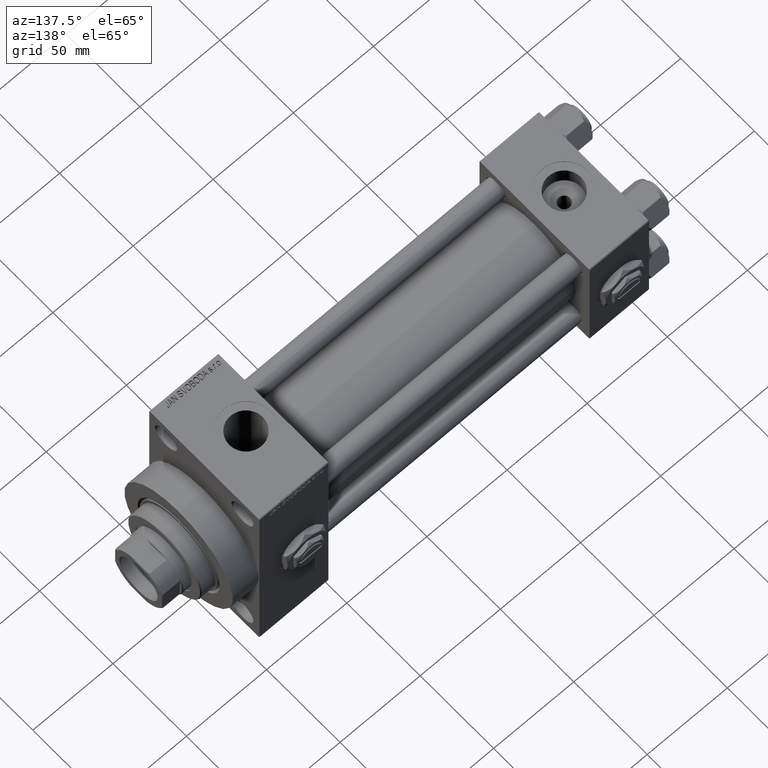
[diagram: clean part render]
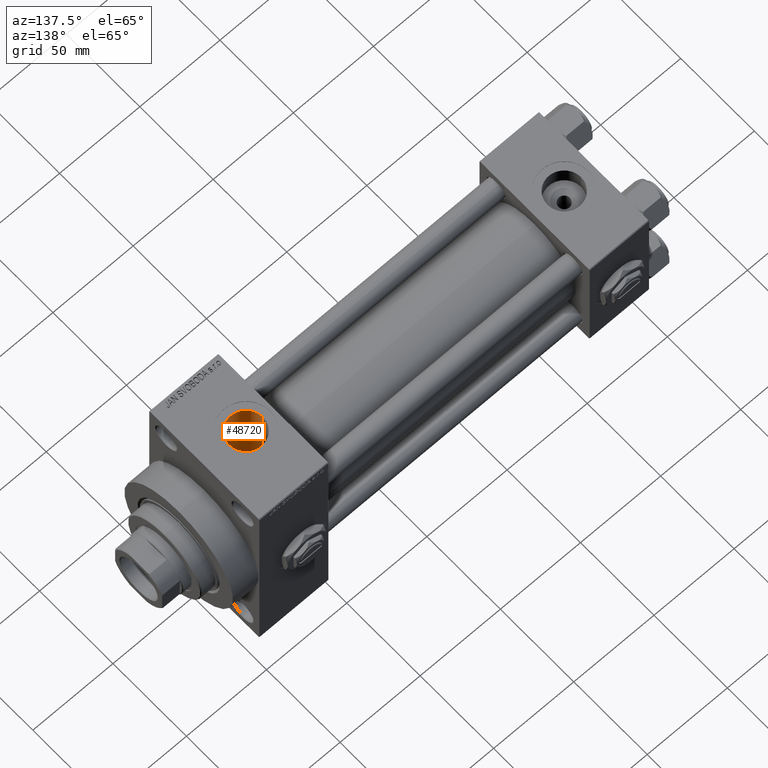
[diagram: same view with one face highlighted and labeled with its STEP entity id]
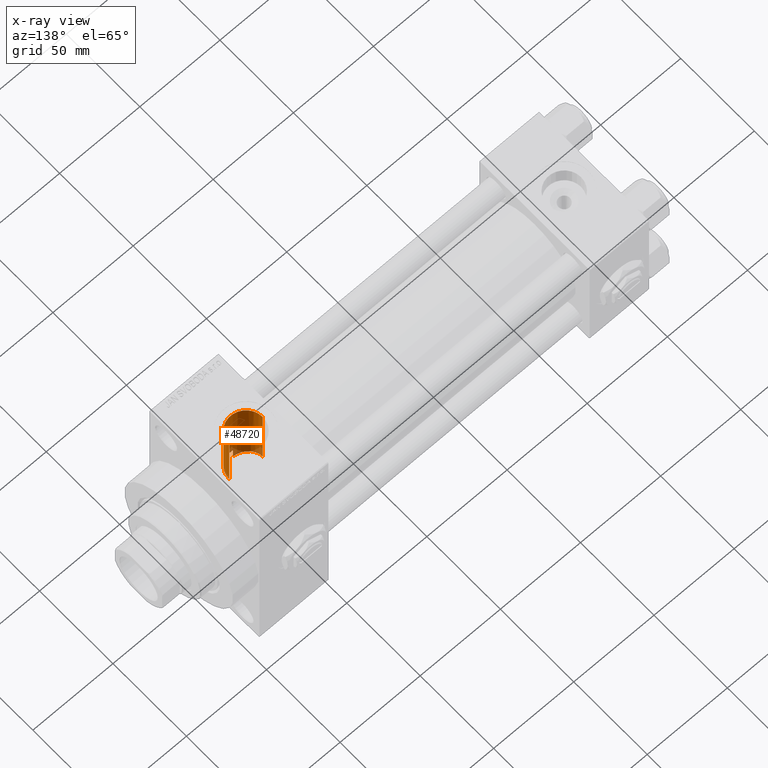
[diagram: x-ray of the same camera — body ghosted, the highlighted face saturated]
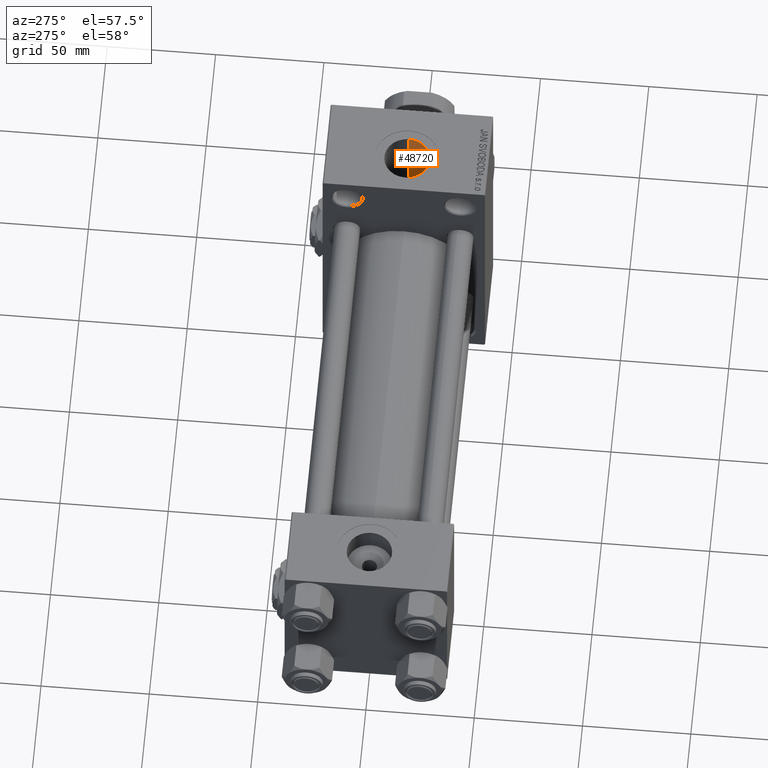
[diagram: same view with one face highlighted and labeled with its STEP entity id]
A machine part, auxiliary view. The second image highlights one B-rep face of the part: STEP entity #48720.
The next image is the same camera in x-ray: the body ghosted, the highlighted face saturated — about 7% of this face is hidden behind the body in this view.
A second angle (auxiliary view) of the same face is appended — the face is thin or edge-on in the first view.
In plain terms, the highlighted cylindrical surface (edge-blend (fillet) strip) has radius 10.48 mm, axis along (0, 0, -1).
Its self-contained STEP definition (entity closure, byte-faithful):
#541 = ORIENTED_EDGE ( 'NONE', *, *, #7051, .F. ) ;
#725 = CARTESIAN_POINT ( 'NONE',  ( 227.4800000000000182, -1.055894908382857656E-14, 86.79999999999995453 ) ) ;
#830 = ORIENTED_EDGE ( 'NONE', *, *, #5356, .F. ) ;
#861 = CARTESIAN_POINT ( 'NONE',  ( 227.4800000000000182, -1.055894908382857656E-14, 63.79999999999996874 ) ) ;
#2280 = ORIENTED_EDGE ( 'NONE', *, *, #5702, .T. ) ;
#3312 = CARTESIAN_POINT ( 'NONE',  ( 226.8335546017134732, -3.642695553053292290, 26.25084325021122567 ) ) ;
#3539 = CARTESIAN_POINT ( 'NONE',  ( 227.4800000000001887, 1.369086091260426415E-14, 26.50000000000006750 ) ) ;
#4025 = CARTESIAN_POINT ( 'NONE',  ( 222.8022832347253654, -8.734885810677008422, 25.02004257437573997 ) ) ;
#5356 = EDGE_CURVE ( 'NONE', #34094, #29550, #36591, .T. ) ;
#5702 = EDGE_CURVE ( 'NONE', #36464, #39620, #40603, .T. ) ;
#5962 = LINE ( 'NONE', #21260, #10732 ) ;
#5991 = CARTESIAN_POINT ( 'NONE',  ( 208.2177924678372847, -5.727359184013972815, 19.68566307691175155 ) ) ;
#7051 = EDGE_CURVE ( 'NONE', #29550, #44443, #7321, .T. ) ;
#7117 = DIRECTION ( 'NONE',  ( 1.000000000000000000, 0.000000000000000000, 0.000000000000000000 ) ) ;
#7321 = LINE ( 'NONE', #21210, #34248 ) ;
#8138 = DIRECTION ( 'NONE',  ( -1.000000000000000000, 0.000000000000000000, 0.000000000000000000 ) ) ;
#10732 = VECTOR ( 'NONE', #25256, 1000.000000000000000 ) ;
#10740 = CARTESIAN_POINT ( 'NONE',  ( 206.7557754428708847, -2.233872855162164495, 20.38041083426450939 ) ) ;
#11307 = CARTESIAN_POINT ( 'NONE',  ( 226.2276638786152034, -4.981583166679976138, 26.02957788900645397 ) ) ;
#11788 = CARTESIAN_POINT ( 'NONE',  ( 221.8603660912150417, -9.291949300782555099, 24.81826977973610937 ) ) ;
#11899 = DIRECTION ( 'NONE',  ( 0.000000000000000000, 0.000000000000000000, -1.000000000000000000 ) ) ;
#12736 = VECTOR ( 'NONE', #27536, 1000.000000000000000 ) ;
#14267 = CARTESIAN_POINT ( 'NONE',  ( 208.7690786171585557, -6.494668957650275409, 19.44580269579670784 ) ) ;
#14518 = CARTESIAN_POINT ( 'NONE',  ( 210.0381797508610759, -7.858608369745931022, 18.93862270061622510 ) ) ;
#15564 = CARTESIAN_POINT ( 'NONE',  ( 225.6508763872861323, -5.926808359427520934, 25.83050513016099714 ) ) ;
#17270 = CARTESIAN_POINT ( 'NONE',  ( 212.6712488263176226, -9.549519568135618641, 18.14045042009997033 ) ) ;
#17531 = CARTESIAN_POINT ( 'NONE',  ( 207.0054261414356631, -3.168907222089405895, 20.25599475177158482 ) ) ;
#18278 = CARTESIAN_POINT ( 'NONE',  ( 214.4743138489851901, -10.19113621709991513, 17.78872259750078300 ) ) ;
#18596 = CARTESIAN_POINT ( 'NONE',  ( 225.8553297434206684, -5.616857363200520759, 25.89992295911059017 ) ) ;
#18835 = CARTESIAN_POINT ( 'NONE',  ( 219.4459359432479459, -10.21777125531390240, 24.45211332338677934 ) ) ;
#18980 = AXIS2_PLACEMENT_3D ( 'NONE', #40969, #40712, #7117 ) ;
#19569 = B_SPLINE_CURVE_WITH_KNOTS ( 'NONE', 3,
 ( #44090, #33048, #18278, #33553, #25044, #17270, #44335, #40823, #48859, #14518, #33297, #29792, #14267, #29546, #5991, #45088, #21286, #36571, #17531, #29044, #10740, #26032, #41316, #32802 ),
 .UNSPECIFIED., .F., .F.,
 ( 4, 2, 2, 2, 2, 2, 2, 2, 2, 2, 2, 4 ),
 ( 0.01794441051450875596, 0.01987210289621882398, 0.02083594908707385798, 0.02179979527792889546, 0.02372748765963889062, 0.02565518004134888924, 0.02661902623220386427, 0.02758287242305883583, 0.02951056480476877547, 0.03047441099562375050, 0.03143825718647871859, 0.03336594956818868252 ),
 .UNSPECIFIED. ) ;
#20452 = EDGE_CURVE ( 'NONE', #21012, #44443, #19569, .T. ) ;
#21012 = VERTEX_POINT ( 'NONE', #30643 ) ;
#21195 = CARTESIAN_POINT ( 'NONE',  ( 206.5200000000000387, 2.510525899703770247E-15, 20.50000000000000000 ) ) ;
#21210 = CARTESIAN_POINT ( 'NONE',  ( 206.5200000000000387, -1.184237892933500047E-14, 86.79999999999995453 ) ) ;
#21260 = CARTESIAN_POINT ( 'NONE',  ( 215.7400000000000091, -10.40398000767013720, 86.79999999999995453 ) ) ;
#21286 = CARTESIAN_POINT ( 'NONE',  ( 207.4472730664948017, -4.356133276745589811, 20.04082582304832627 ) ) ;
#22067 = AXIS2_PLACEMENT_3D ( 'NONE', #47375, #11899, #8138 ) ;
#22361 = CARTESIAN_POINT ( 'NONE',  ( 218.7216423275559691, -10.36418010715237159, 24.38933169417625280 ) ) ;
#22834 = CARTESIAN_POINT ( 'NONE',  ( 227.4011065554137474, -1.483758503940589613, 26.46850309434598003 ) ) ;
#23080 = CARTESIAN_POINT ( 'NONE',  ( 220.8600678267364117, -9.750145953289937495, 24.64162310621549068 ) ) ;
#23323 = CARTESIAN_POINT ( 'NONE',  ( 220.5115735695664796, -9.881194972351272199, 24.58915736193083390 ) ) ;
#23531 = LINE ( 'NONE', #725, #12736 ) ;
#25044 = CARTESIAN_POINT ( 'NONE',  ( 213.2578787675115564, -9.794280953047078242, 18.00947878310445915 ) ) ;
#25256 = DIRECTION ( 'NONE',  ( -0.000000000000000000, -0.000000000000000000, 1.000000000000000000 ) ) ;
#26032 = CARTESIAN_POINT ( 'NONE',  ( 206.5788755912575994, -1.283068547344818677, 20.46971103676261450 ) ) ;
#26589 = CARTESIAN_POINT ( 'NONE',  ( 224.5076201536012093, -7.348534936426559305, 25.46581292754184034 ) ) ;
#26953 = EDGE_CURVE ( 'NONE', #34094, #36464, #23531, .T. ) ;
#27070 = CARTESIAN_POINT ( 'NONE',  ( 227.1654842721633827, -2.575241489874377621, 26.37710048711163324 ) ) ;
#27536 = DIRECTION ( 'NONE',  ( 0.000000000000000000, 0.000000000000000000, -1.000000000000000000 ) ) ;
#28964 = ORIENTED_EDGE ( 'NONE', *, *, #26953, .T. ) ;
#29044 = CARTESIAN_POINT ( 'NONE',  ( 206.8301889492347527, -2.551161066698723889, 20.34303009823682018 ) ) ;
#29546 = CARTESIAN_POINT ( 'NONE',  ( 208.3953798552083754, -5.990768218169443493, 19.60690346560341624 ) ) ;
#29550 = VERTEX_POINT ( 'NONE', #44477 ) ;
#29792 = CARTESIAN_POINT ( 'NONE',  ( 208.9658951235677478, -6.736478654131065724, 19.36312927646823923 ) ) ;
#30122 = CARTESIAN_POINT ( 'NONE',  ( 227.4800000000001887, 1.369086091260426415E-14, 26.50000000000006750 ) ) ;
#30352 = CARTESIAN_POINT ( 'NONE',  ( 227.4800000000000182, -0.7466733969459942166, 26.50000000000000711 ) ) ;
#30643 = CARTESIAN_POINT ( 'NONE',  ( 215.7400000000000091, -10.40398000767013720, 17.66372554134603234 ) ) ;
#30833 = CARTESIAN_POINT ( 'NONE',  ( 223.6874981071936759, -8.077221093107581851, 25.24030799844106099 ) ) ;
#32062 = CYLINDRICAL_SURFACE ( 'NONE', #22067, 10.47999999999998977 ) ;
#32308 = ORIENTED_EDGE ( 'NONE', *, *, #20452, .T. ) ;
#32513 = CARTESIAN_POINT ( 'NONE',  ( 215.7400000000000091, -10.40398000767013720, 24.37226292324945831 ) ) ;
#32802 = CARTESIAN_POINT ( 'NONE',  ( 206.5200000000000387, 2.510525899703770247E-15, 20.50000000000000000 ) ) ;
#33048 = CARTESIAN_POINT ( 'NONE',  ( 215.0989953179742713, -10.32634953368259367, 17.70945009121304281 ) ) ;
#33297 = CARTESIAN_POINT ( 'NONE',  ( 209.5858530633664145, -7.432843903534906538, 19.11142359022019477 ) ) ;
#33553 = CARTESIAN_POINT ( 'NONE',  ( 213.5601267213962444, -9.904527187573155089, 17.94888070193249519 ) ) ;
#33866 = CARTESIAN_POINT ( 'NONE',  ( 226.6993435614955388, -3.985990130492295780, 26.20070574291653642 ) ) ;
#33979 = EDGE_LOOP ( 'NONE', ( #830, #28964, #2280, #43066, #32308, #541 ) ) ;
#34094 = VERTEX_POINT ( 'NONE', #861 ) ;
#34111 = CARTESIAN_POINT ( 'NONE',  ( 223.3983008714430696, -8.308216825530752914, 25.16494175890555240 ) ) ;
#34248 = VECTOR ( 'NONE', #47530, 1000.000000000000000 ) ;
#34350 = CARTESIAN_POINT ( 'NONE',  ( 221.5335921408433535, -9.455792512420348572, 24.75606841526506230 ) ) ;
#35841 = FACE_OUTER_BOUND ( 'NONE', #33979, .T. ) ;
#36464 = VERTEX_POINT ( 'NONE', #30122 ) ;
#36571 = CARTESIAN_POINT ( 'NONE',  ( 207.1063378233203309, -3.470716205836929635, 20.20629303502188634 ) ) ;
#36591 = CIRCLE ( 'NONE', #18980, 10.47999999999998977 ) ;
#37642 = CARTESIAN_POINT ( 'NONE',  ( 216.4868983507927567, -10.49443499905853727, 24.33364968799252992 ) ) ;
#38113 = CARTESIAN_POINT ( 'NONE',  ( 227.0665133812163106, -2.938253791439166207, 26.33899517628734444 ) ) ;
#38365 = CARTESIAN_POINT ( 'NONE',  ( 215.7400000000000091, -10.40398000767013720, 24.37226292324945831 ) ) ;
#39620 = VERTEX_POINT ( 'NONE', #32513 ) ;
#40603 = B_SPLINE_CURVE_WITH_KNOTS ( 'NONE', 3,
 ( #3539, #30352, #22834, #27070, #38113, #3312, #33866, #42359, #11307, #18596, #15564, #41640, #26589, #30833, #34111, #4025, #46134, #11788, #34350, #23080, #23323, #18835, #22361, #45413, #37642, #38365 ),
 .UNSPECIFIED., .F., .F.,
 ( 4, 2, 2, 2, 2, 2, 2, 2, 2, 2, 2, 2, 4 ),
 ( 0.01781170071191074539, 0.02003745927526344797, 0.02115033855693980100, 0.02226321783861615056, 0.02337609712029250358, 0.02448897640196885661, 0.02671473496532155573, 0.02782761424699790875, 0.02894049352867426178, 0.03005337281035061481, 0.03116625209202696437, 0.03339201065537959756, 0.03561776921873222035 ),
 .UNSPECIFIED. ) ;
#40712 = DIRECTION ( 'NONE',  ( -0.000000000000000000, -0.000000000000000000, -1.000000000000000000 ) ) ;
#40823 = CARTESIAN_POINT ( 'NONE',  ( 211.5531845509291884, -8.975341525110605900, 18.43369678050424199 ) ) ;
#40969 = CARTESIAN_POINT ( 'NONE',  ( 217.0000000000000284, -1.184237892933500047E-14, 63.79999999999996874 ) ) ;
#41316 = CARTESIAN_POINT ( 'NONE',  ( 206.5200000000000671, -0.6440971456680799623, 20.50000000000000000 ) ) ;
#41339 = EDGE_CURVE ( 'NONE', #21012, #39620, #5962, .T. ) ;
#41640 = CARTESIAN_POINT ( 'NONE',  ( 224.9981355541605694, -6.811571481472494582, 25.61680511670813232 ) ) ;
#42359 = CARTESIAN_POINT ( 'NONE',  ( 226.3963988635402984, -4.655434592126350246, 26.09007526830297863 ) ) ;
#43066 = ORIENTED_EDGE ( 'NONE', *, *, #41339, .F. ) ;
#44090 = CARTESIAN_POINT ( 'NONE',  ( 215.7400000000000091, -10.40398000767013720, 17.66372554134603234 ) ) ;
#44335 = CARTESIAN_POINT ( 'NONE',  ( 212.3860343387702869, -9.414895611962208477, 18.21089574232529529 ) ) ;
#44443 = VERTEX_POINT ( 'NONE', #21195 ) ;
#44477 = CARTESIAN_POINT ( 'NONE',  ( 206.5200000000000387, -1.184237892933500047E-14, 63.79999999999996874 ) ) ;
#45088 = CARTESIAN_POINT ( 'NONE',  ( 207.7251524828654681, -4.919883431204969071, 19.90870771860741328 ) ) ;
#45413 = CARTESIAN_POINT ( 'NONE',  ( 217.2451057705677329, -10.50334255171940079, 24.32972513250578572 ) ) ;
#46134 = CARTESIAN_POINT ( 'NONE',  ( 222.4947120380321337, -8.931495953537153198, 24.95025484238638924 ) ) ;
#47375 = CARTESIAN_POINT ( 'NONE',  ( 217.0000000000000284, -1.184237892933500047E-14, 86.79999999999995453 ) ) ;
#47530 = DIRECTION ( 'NONE',  ( 0.000000000000000000, 0.000000000000000000, -1.000000000000000000 ) ) ;
#48720 = ADVANCED_FACE ( 'NONE', ( #35841 ), #32062, .F. ) ;
#48859 = CARTESIAN_POINT ( 'NONE',  ( 211.0263084910633040, -8.633636339713333996, 18.59810417378390213 ) ) ;